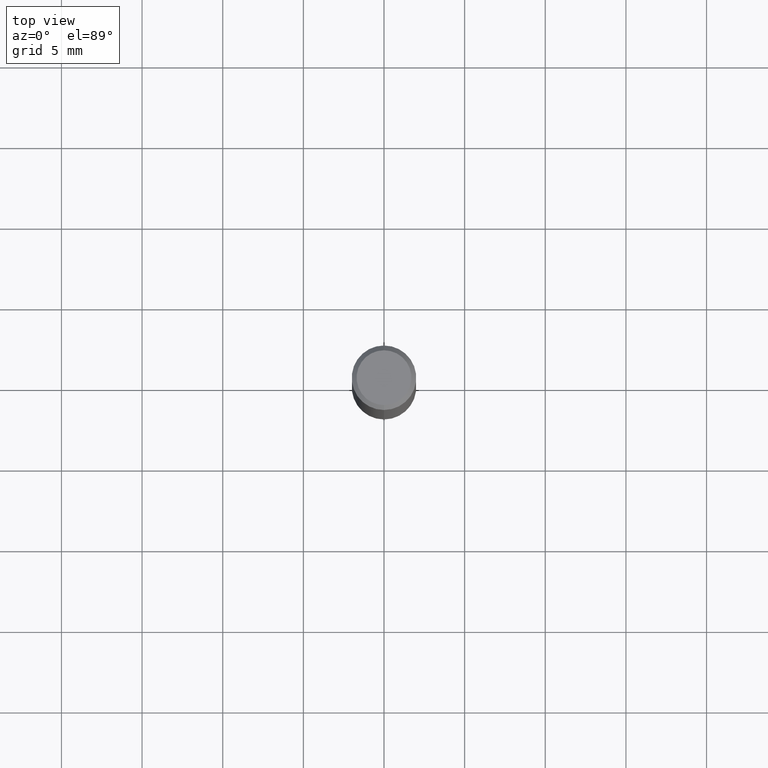
[diagram: clean part render]
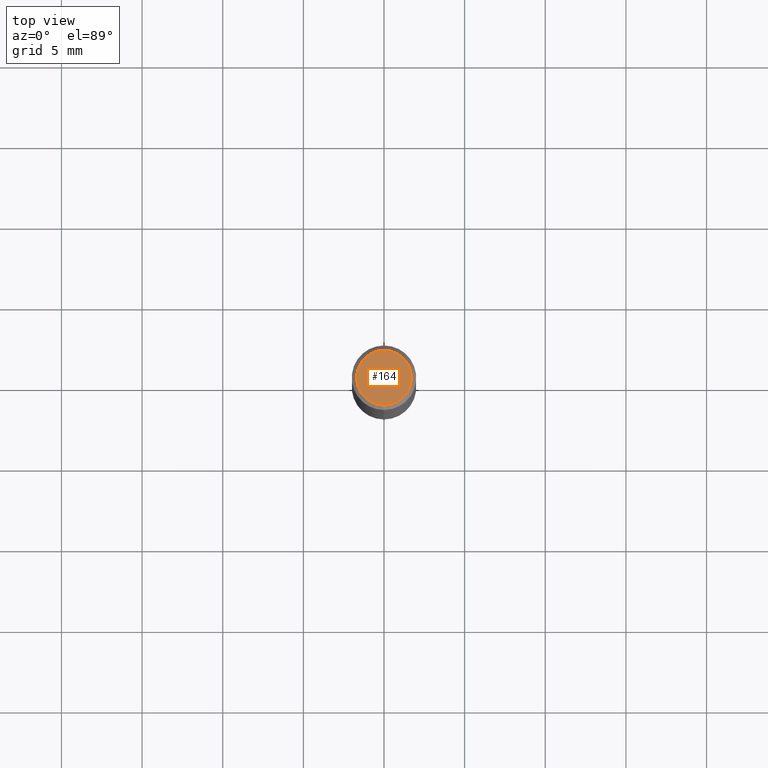
[diagram: same view with one face highlighted and labeled with its STEP entity id]
A machine part, top view. The second image highlights one B-rep face of the part: STEP entity #164.
In plain terms, the highlighted planar face has unit normal (-0, 0, 1).
Its self-contained STEP definition (entity closure, byte-faithful):
#120=VERTEX_POINT('',#267);
#130=EDGE_CURVE('',#120,#182,#278,.T.);
#164=ADVANCED_FACE('',(#313),#314,.T.);
#182=VERTEX_POINT('',#336);
#192=EDGE_CURVE('',#182,#120,#346,.T.);
#267=CARTESIAN_POINT('',(0.0,1.7,0.0));
#278=CIRCLE('',#434,1.7);
#313=FACE_OUTER_BOUND('',#482,.T.);
#314=PLANE('',#483);
#336=CARTESIAN_POINT('',(2.08183080149804E-016,-1.7,0.0));
#346=CIRCLE('',#524,1.7);
#434=AXIS2_PLACEMENT_3D('',#612,#613,#614);
#482=EDGE_LOOP('',(#641,#642));
#483=AXIS2_PLACEMENT_3D('',#643,#644,#645);
#524=AXIS2_PLACEMENT_3D('',#692,#693,#694);
#612=CARTESIAN_POINT('',(0.0,0.0,0.0));
#613=DIRECTION('',(0.0,0.0,-1.0));
#614=DIRECTION('',(0.0,1.0,0.0));
#641=ORIENTED_EDGE('',*,*,#130,.F.);
#642=ORIENTED_EDGE('',*,*,#192,.F.);
#643=CARTESIAN_POINT('',(0.0,0.85,0.0));
#644=DIRECTION('',(-0.0,0.0,1.0));
#645=DIRECTION('',(0.0,-1.0,0.0));
#692=CARTESIAN_POINT('',(0.0,0.0,0.0));
#693=DIRECTION('',(0.0,0.0,-1.0));
#694=DIRECTION('',(0.0,1.0,0.0));